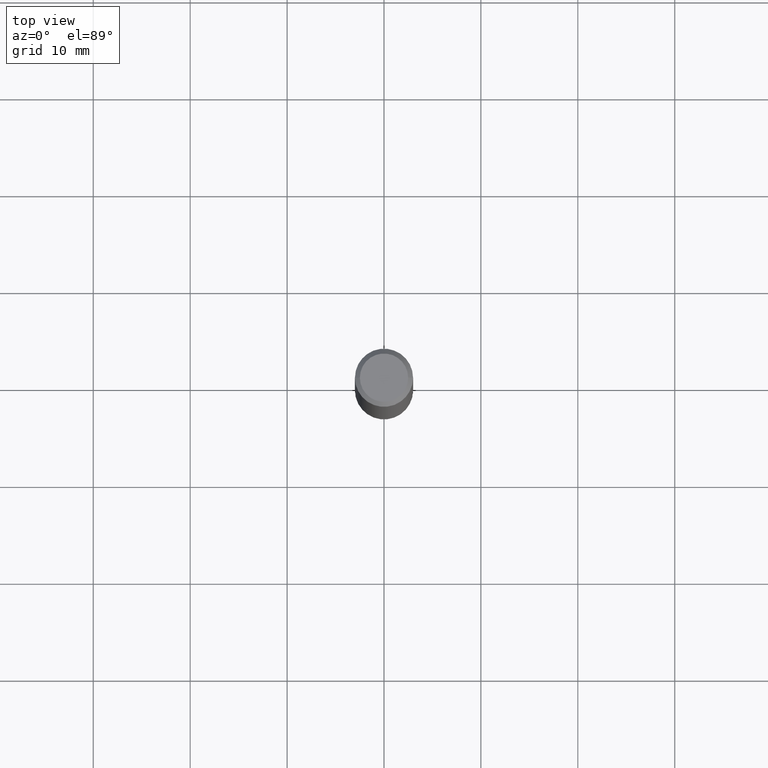
[diagram: clean part render]
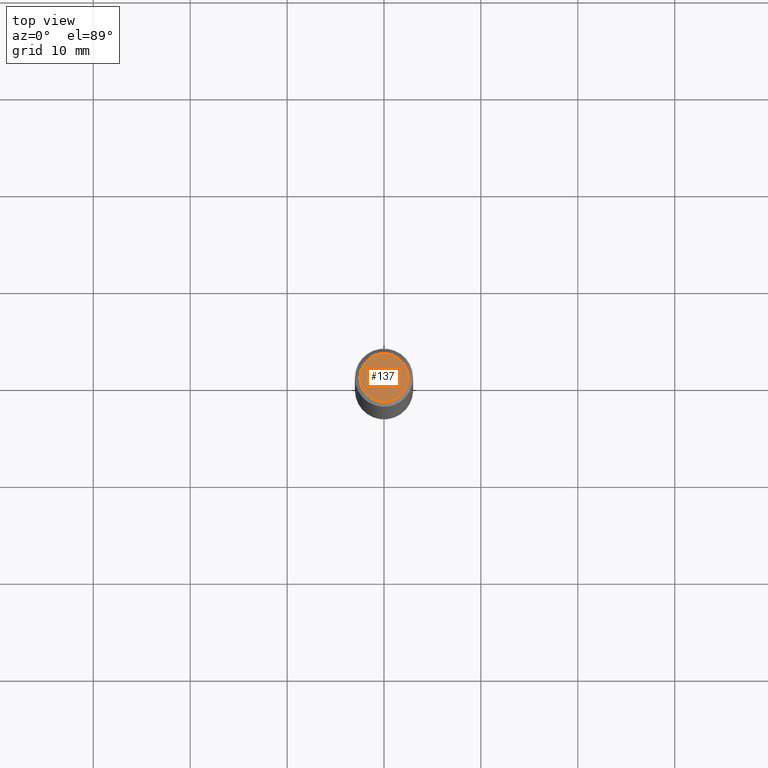
[diagram: same view with one face highlighted and labeled with its STEP entity id]
A machine part, top view. The second image highlights one B-rep face of the part: STEP entity #137.
In plain terms, the highlighted planar face has unit normal (0, -0, -1).
Its self-contained STEP definition (entity closure, byte-faithful):
#3 = AXIS2_PLACEMENT_3D ( 'NONE', #230, #206, #266 ) ;
#10 = AXIS2_PLACEMENT_3D ( 'NONE', #308, #226, #279 ) ;
#40 = EDGE_CURVE ( 'NONE', #286, #270, #253, .T. ) ;
#46 = EDGE_LOOP ( 'NONE', ( #154, #215 ) ) ;
#55 = DIRECTION ( 'NONE',  ( 1.000000000000000000, -6.982962677686266711E-15, 4.877161320636775200E-29 ) ) ;
#63 = CARTESIAN_POINT ( 'NONE',  ( -0.09809999999999984011, 7.199434520694523292E-16, -4.268512490100902468E-17 ) ) ;
#118 = PLANE ( 'NONE',  #10 ) ;
#129 = CARTESIAN_POINT ( 'NONE',  ( 0.09809999999999984011, -7.765346469475327723E-16, -4.268512490099900368E-17 ) ) ;
#137 = ADVANCED_FACE ( 'NONE', ( #359 ), #118, .F. ) ;
#154 = ORIENTED_EDGE ( 'NONE', *, *, #352, .T. ) ;
#206 = DIRECTION ( 'NONE',  ( -2.445468806185136597E-29, 3.491481338843145583E-15, 1.000000000000000000 ) ) ;
#215 = ORIENTED_EDGE ( 'NONE', *, *, #40, .T. ) ;
#226 = DIRECTION ( 'NONE',  ( 2.438088387897960049E-29, -3.491481338843145188E-15, -1.000000000000000000 ) ) ;
#228 = CARTESIAN_POINT ( 'NONE',  ( 1.043851414335219781E-45, -1.490343170380447145E-31, -4.268512490100411279E-17 ) ) ;
#230 = CARTESIAN_POINT ( 'NONE',  ( 1.043851414335219781E-45, -1.490343170380447145E-31, -4.268512490100411279E-17 ) ) ;
#253 = CIRCLE ( 'NONE', #3, 0.09809999999999984011 ) ;
#254 = AXIS2_PLACEMENT_3D ( 'NONE', #228, #313, #55 ) ;
#266 = DIRECTION ( 'NONE',  ( 1.000000000000000000, -6.982962677686266711E-15, 4.877161320636775200E-29 ) ) ;
#270 = VERTEX_POINT ( 'NONE', #63 ) ;
#279 = DIRECTION ( 'NONE',  ( -1.000000000000000000, 6.982962677686265922E-15, -4.876176775795935793E-29 ) ) ;
#286 = VERTEX_POINT ( 'NONE', #129 ) ;
#306 = CIRCLE ( 'NONE', #254, 0.09809999999999984011 ) ;
#308 = CARTESIAN_POINT ( 'NONE',  ( 6.850286386810215676E-16, 0.09809999999999984011, -3.638568817910140512E-16 ) ) ;
#313 = DIRECTION ( 'NONE',  ( -2.445468806185136597E-29, 3.491481338843145583E-15, 1.000000000000000000 ) ) ;
#352 = EDGE_CURVE ( 'NONE', #270, #286, #306, .T. ) ;
#359 = FACE_OUTER_BOUND ( 'NONE', #46, .T. ) ;